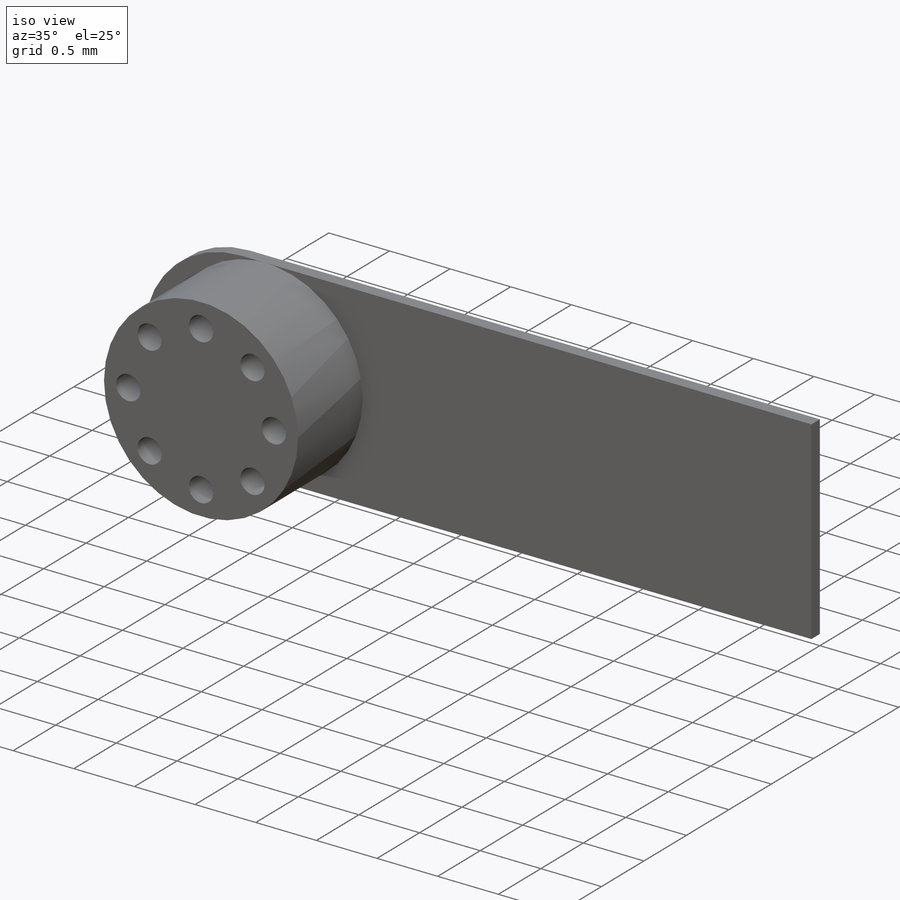
[diagram: iso view]
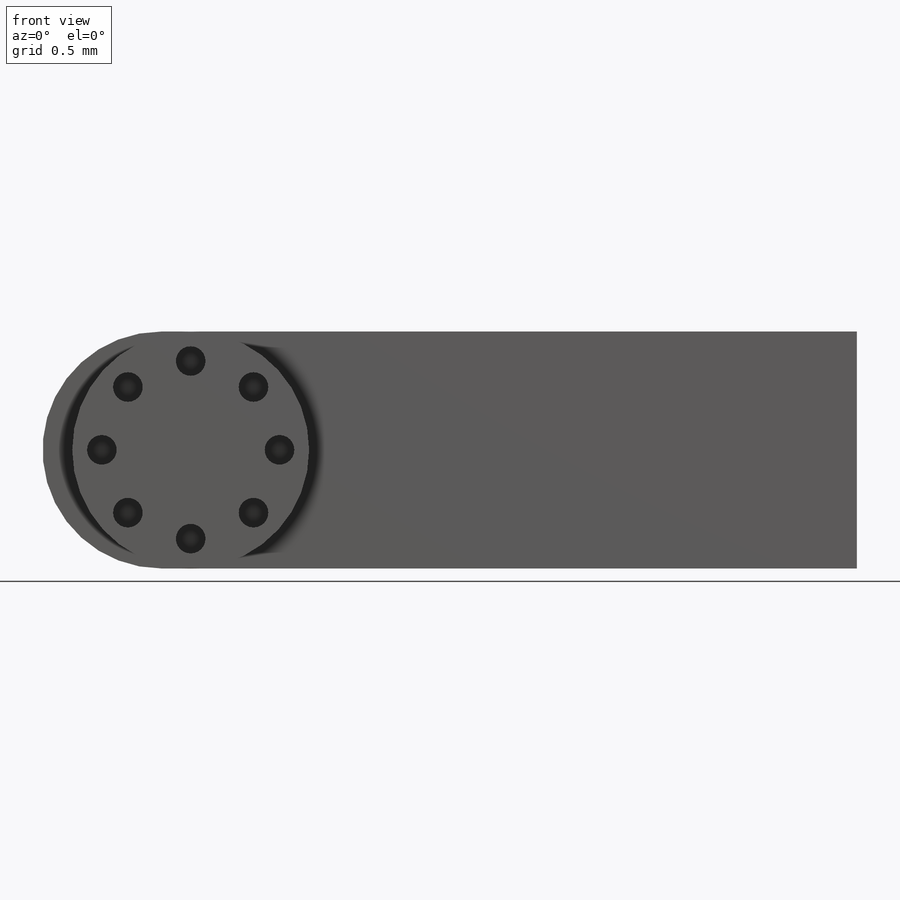
[diagram: front view]
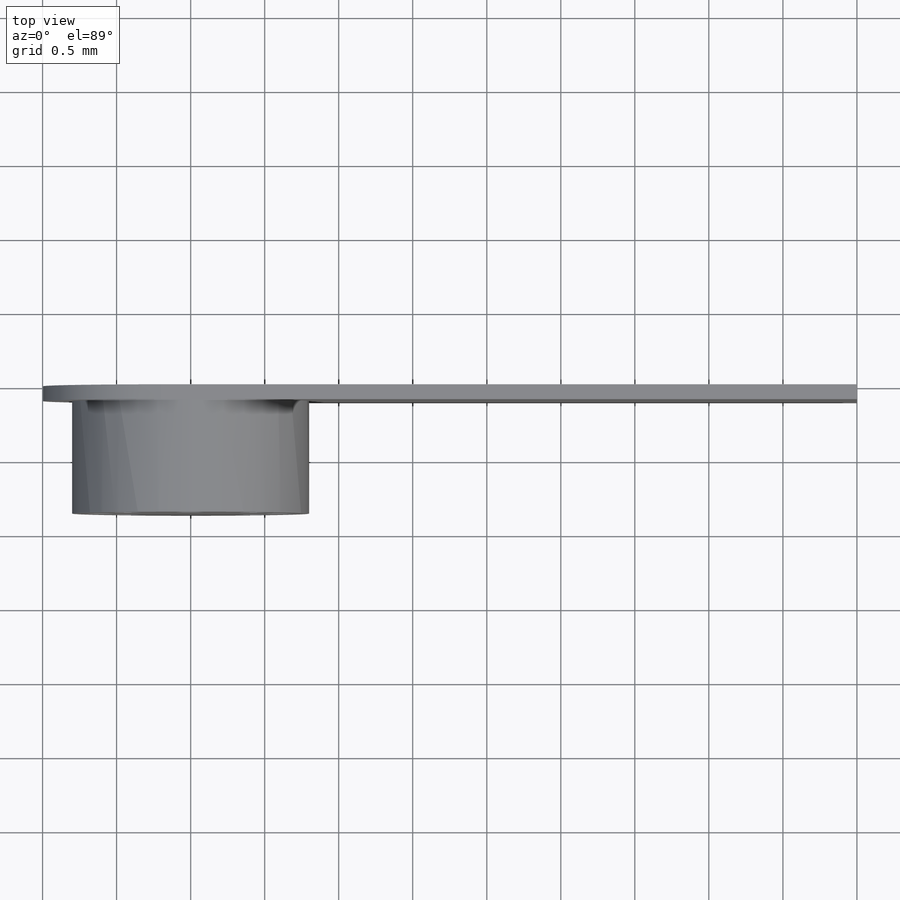
[diagram: top view]
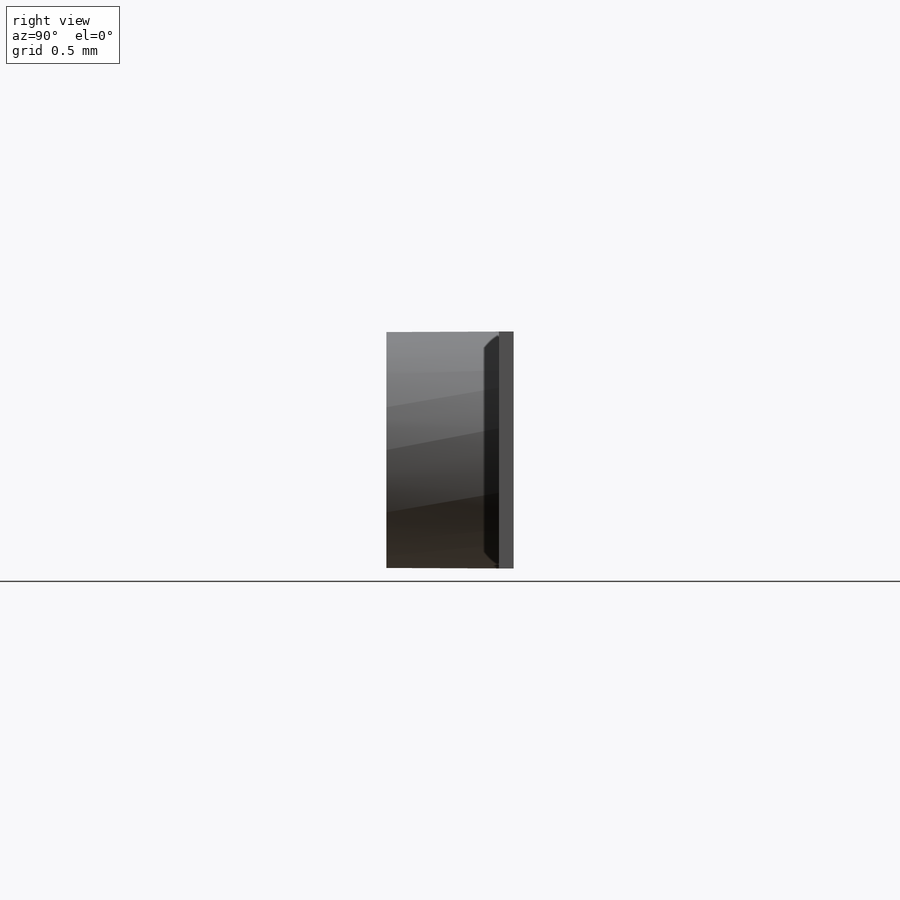
[diagram: right view]
SOLIDWORKS PART (.sldprt)
format: sldprt  version: not decoded by parser v0  size: 194,048 bytes
history: native  units: mm
features: plane x5, sketch x4, extrude x2, material x1, hole x1, pattern_circular x1 (+10 scaffold rows collapsed)
feature tree (24):
  scaffold x10  (default folders/planes/origin — collapsed)
  material  "Material <nicht angegeben>"
  plane  "Ebene vorne"
  plane  "Ebene oben"
  plane  "Ebene rechts"
  sketch  "Skizze1"  dims[D1=4.7mm D2=1.6mm]
  extrude  "Aufsatz-Linear austragen1"  Depth=0.1mm
  sketch  "Skizze2"  dims[D1=1.6mm D2=4.5mm D3=0.8mm]
  extrude  "Aufsatz-Linear austragen2"  Depth=0.76mm
  plane  "Ebene1"
  plane  "Ebene2"
  hole  "Durchgangsloch für M1.41"  Diameter=0.2mm Depth=0.4mm
  sketch  "3D-Skizze1"  dims[D1=1.4mm D2=0.8mm]
  sketch  "Skizze4"  dims[hole-wizard template sketch: 46 standard entries collapsed; hole parameters kept: c15.Bohrerdurchmesser=0.2mm c15.Bohrungstiefe=0.4mm c15.D3=~14.816244mm c15.Spitzenwinkel=180.0deg]
  pattern_circular  "Kreismuster5"  Count=8 Angle=360deg
decode coverage: 8 of 8 modeling features carry decoded parameters
note: ~ marks probable driven/reference dimensions
note: suppression state not decoded; provenance and decode notes live in map.json
